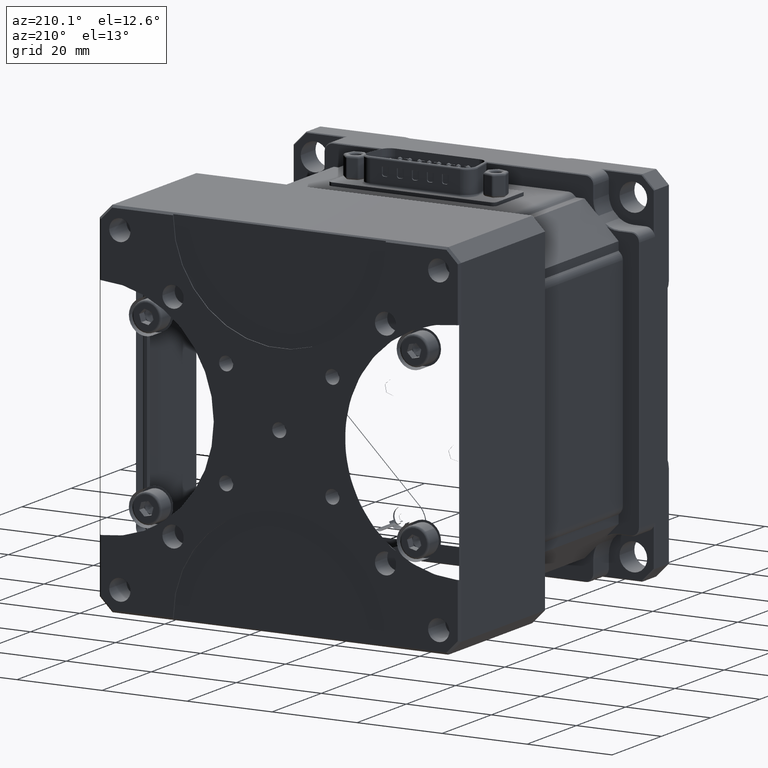
[diagram: clean part render]
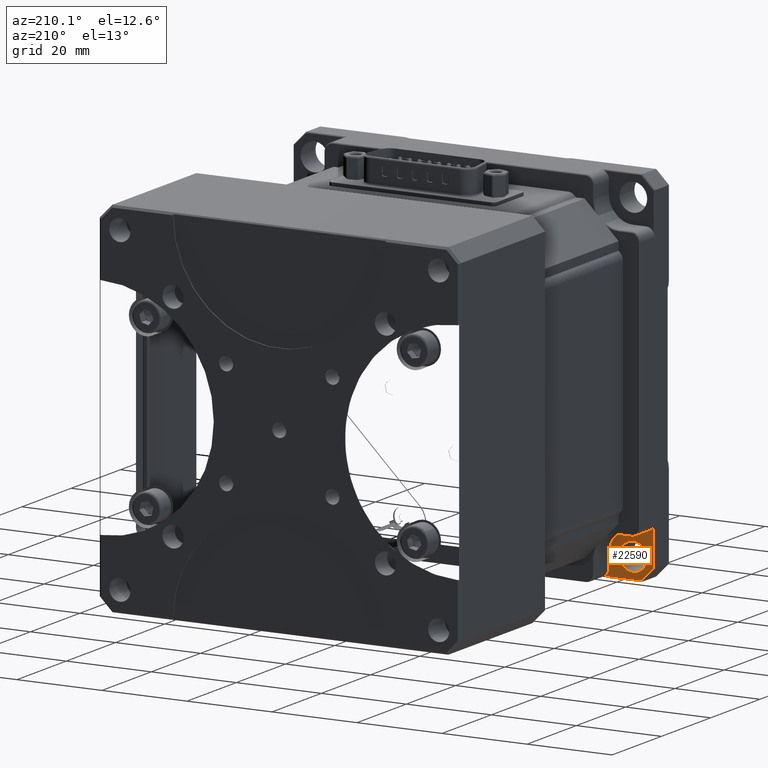
[diagram: same view with one face highlighted and labeled with its STEP entity id]
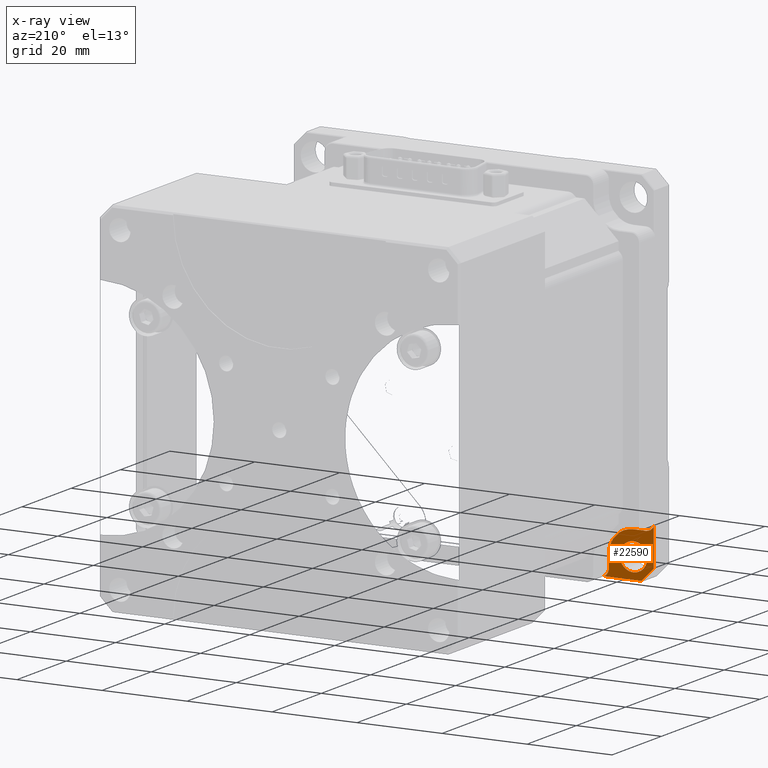
[diagram: x-ray of the same camera — body ghosted, the highlighted face saturated]
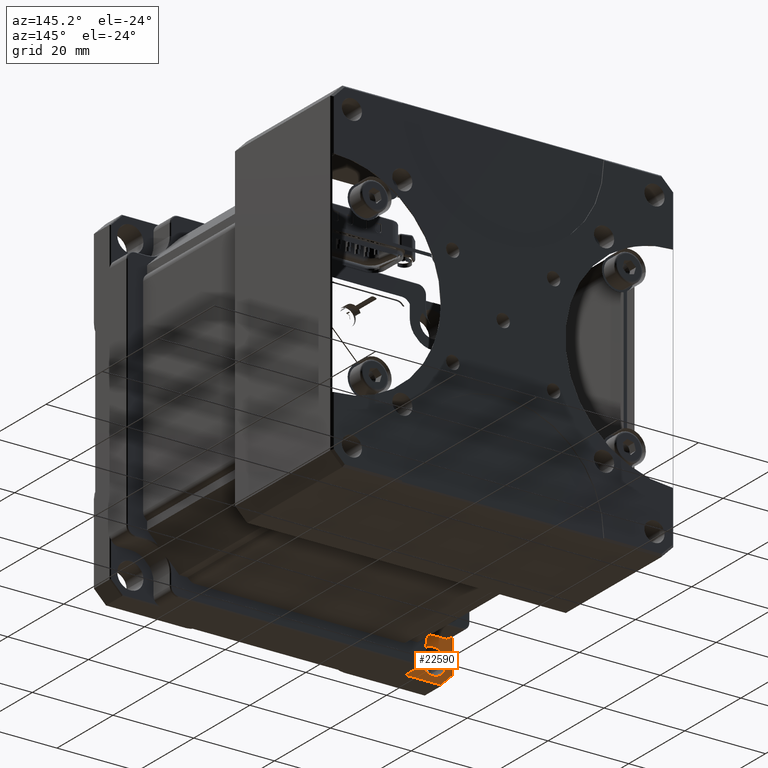
[diagram: same view with one face highlighted and labeled with its STEP entity id]
A machine part, auxiliary view. The second image highlights one B-rep face of the part: STEP entity #22590.
The next image is the same camera in x-ray: the body ghosted, the highlighted face saturated — about 0% of this face is hidden behind the body in this view.
A second angle (auxiliary view) of the same face is appended — the face is thin or edge-on in the first view.
In plain terms, the highlighted planar face has unit normal (0, -1, 0).
Its self-contained STEP definition (entity closure, byte-faithful):
#761 = DIRECTION ( 'NONE',  ( 0.000000000000000000, -1.103725197610289945E-16, -1.000000000000000000 ) ) ;
#859 = DIRECTION ( 'NONE',  ( 4.336808689942015271E-16, -1.000000000000000000, 1.103725197610289945E-16 ) ) ;
#2305 = CARTESIAN_POINT ( 'NONE',  ( 47.87449350438039630, 6.000000000000000000, -76.00000000000000000 ) ) ;
#2896 = DIRECTION ( 'NONE',  ( 1.000000000000000000, 3.016910393003143845E-16, 0.000000000000000000 ) ) ;
#2905 = VECTOR ( 'NONE', #27204, 1000.000000000000114 ) ;
#3773 = DIRECTION ( 'NONE',  ( 2.498001805406600244E-16, -1.000000000000000000, 1.103725197610289945E-16 ) ) ;
#4316 = DIRECTION ( 'NONE',  ( 1.000000000000000000, 4.336808689942013792E-16, 0.000000000000000000 ) ) ;
#6122 = VERTEX_POINT ( 'NONE', #31535 ) ;
#6346 = CARTESIAN_POINT ( 'NONE',  ( 52.67449350438040057, 6.000000000000000000, -76.00000000000000000 ) ) ;
#6957 = CARTESIAN_POINT ( 'NONE',  ( 52.67449350438040057, 6.000000000000000000, -70.25000000000000000 ) ) ;
#7994 = VECTOR ( 'NONE', #21279, 1000.000000000000000 ) ;
#8258 = EDGE_CURVE ( 'NONE', #27097, #20158, #10456, .T. ) ;
#9371 = DIRECTION ( 'NONE',  ( -2.668805347656624706E-16, 1.000000000000000000, -1.103725197610289945E-16 ) ) ;
#9893 = DIRECTION ( 'NONE',  ( 0.7071067811865480168, 9.859024442225550067E-17, -0.7071067811865470176 ) ) ;
#10456 = CIRCLE ( 'NONE', #34786, 3.250000000000002665 ) ;
#10621 = ORIENTED_EDGE ( 'NONE', *, *, #28159, .T. ) ;
#10653 = DIRECTION ( 'NONE',  ( 1.000000000000000000, 3.016910393003143845E-16, 0.000000000000000000 ) ) ;
#10677 = FACE_BOUND ( 'NONE', #26258, .T. ) ;
#11905 = EDGE_LOOP ( 'NONE', ( #36570, #38487, #30984, #10621, #30698, #15861, #30498, #23597, #13477, #23446 ) ) ;
#12437 = EDGE_CURVE ( 'NONE', #39792, #45081, #40848, .T. ) ;
#13477 = ORIENTED_EDGE ( 'NONE', *, *, #29172, .T. ) ;
#13641 = EDGE_CURVE ( 'NONE', #23684, #19531, #23766, .T. ) ;
#14053 = CARTESIAN_POINT ( 'NONE',  ( 58.42449350438040057, 6.000000000000000000, -79.00000000000000000 ) ) ;
#14069 = CARTESIAN_POINT ( 'NONE',  ( 55.92449350438040057, 6.000000000000000000, -76.00000000000000000 ) ) ;
#14130 = LINE ( 'NONE', #18034, #7994 ) ;
#14556 = DIRECTION ( 'NONE',  ( -3.016910393003145324E-16, 1.000000000000000000, -1.103725197610289945E-16 ) ) ;
#15802 = DIRECTION ( 'NONE',  ( 1.000000000000000000, 2.498001805406600244E-16, 3.148324760917950083E-16 ) ) ;
#15861 = ORIENTED_EDGE ( 'NONE', *, *, #30538, .T. ) ;
#16752 = AXIS2_PLACEMENT_3D ( 'NONE', #38887, #42347, #18084 ) ;
#16797 = LINE ( 'NONE', #30896, #2905 ) ;
#17835 = CIRCLE ( 'NONE', #30406, 2.000000000000001776 ) ;
#18034 = CARTESIAN_POINT ( 'NONE',  ( 52.67449350438040057, 6.000000000000000000, -80.79999999999999716 ) ) ;
#18084 = DIRECTION ( 'NONE',  ( 1.000000000000000000, 4.336808689942013792E-16, 0.000000000000000000 ) ) ;
#18290 = FACE_OUTER_BOUND ( 'NONE', #11905, .T. ) ;
#18692 = VERTEX_POINT ( 'NONE', #6957 ) ;
#18758 = CARTESIAN_POINT ( 'NONE',  ( 55.94562451752479859, 6.000000000000000000, -71.27113101314439803 ) ) ;
#18966 = VERTEX_POINT ( 'NONE', #27246 ) ;
#19133 = VECTOR ( 'NONE', #9893, 1000.000000000000000 ) ;
#19307 = CARTESIAN_POINT ( 'NONE',  ( 49.42449350438040057, 6.000000000000000000, -76.00000000000000000 ) ) ;
#19373 = DIRECTION ( 'NONE',  ( 3.861978163544035151E-16, 1.103725197610303873E-16, 1.000000000000000000 ) ) ;
#19531 = VERTEX_POINT ( 'NONE', #29222 ) ;
#20158 = VERTEX_POINT ( 'NONE', #14069 ) ;
#20553 = CIRCLE ( 'NONE', #23490, 3.250000000000002665 ) ;
#20655 = DIRECTION ( 'NONE',  ( 1.000000000000000000, 2.668805347656624213E-16, 0.000000000000000000 ) ) ;
#20801 = DIRECTION ( 'NONE',  ( -3.861978163544035151E-16, -1.103725197610303873E-16, -1.000000000000000000 ) ) ;
#21235 = CARTESIAN_POINT ( 'NONE',  ( 58.42449350438040057, 6.000000000000000000, -76.00000000000000000 ) ) ;
#21279 = DIRECTION ( 'NONE',  ( -1.000000000000000000, -2.498001805406600244E-16, 3.861978163544035151E-16 ) ) ;
#21305 = PLANE ( 'NONE',  #31625 ) ;
#22590 = ADVANCED_FACE ( 'NONE', ( #18290, #10677 ), #21305, .F. ) ;
#23446 = ORIENTED_EDGE ( 'NONE', *, *, #45681, .T. ) ;
#23490 = AXIS2_PLACEMENT_3D ( 'NONE', #37104, #9371, #33174 ) ;
#23597 = ORIENTED_EDGE ( 'NONE', *, *, #12437, .T. ) ;
#23684 = VERTEX_POINT ( 'NONE', #18758 ) ;
#23766 = LINE ( 'NONE', #23981, #19133 ) ;
#23812 = LINE ( 'NONE', #21235, #38929 ) ;
#23981 = CARTESIAN_POINT ( 'NONE',  ( 56.67449350438040057, 6.000000000000000000, -72.00000000000000000 ) ) ;
#24868 = AXIS2_PLACEMENT_3D ( 'NONE', #38620, #14556, #10653 ) ;
#26100 = EDGE_CURVE ( 'NONE', #44115, #30821, #17835, .T. ) ;
#26258 = EDGE_LOOP ( 'NONE', ( #44620, #34760 ) ) ;
#26887 = DIRECTION ( 'NONE',  ( -2.668805347656624706E-16, 1.000000000000000000, -1.103725197610289945E-16 ) ) ;
#27097 = VERTEX_POINT ( 'NONE', #19307 ) ;
#27204 = DIRECTION ( 'NONE',  ( -0.7071067811865505703, -9.859024442225472413E-17, 0.7071067811865444641 ) ) ;
#27246 = CARTESIAN_POINT ( 'NONE',  ( 50.75733621685500196, 6.000000000000000000, -80.79999999999999716 ) ) ;
#28159 = EDGE_CURVE ( 'NONE', #28983, #44115, #23812, .T. ) ;
#28983 = VERTEX_POINT ( 'NONE', #30378 ) ;
#29172 = EDGE_CURVE ( 'NONE', #45081, #6122, #32968, .T. ) ;
#29222 = CARTESIAN_POINT ( 'NONE',  ( 57.40336249123599544, 6.000000000000000000, -72.72886898685560197 ) ) ;
#29450 = EDGE_CURVE ( 'NONE', #18692, #23684, #32246, .T. ) ;
#30042 = EDGE_CURVE ( 'NONE', #19531, #28983, #31574, .T. ) ;
#30378 = CARTESIAN_POINT ( 'NONE',  ( 58.42449350438040057, 6.000000000000000000, -76.00000000000000000 ) ) ;
#30406 = AXIS2_PLACEMENT_3D ( 'NONE', #33152, #859, #4316 ) ;
#30498 = ORIENTED_EDGE ( 'NONE', *, *, #31195, .T. ) ;
#30538 = EDGE_CURVE ( 'NONE', #30821, #18966, #14130, .T. ) ;
#30596 = DIRECTION ( 'NONE',  ( -3.016910393003145324E-16, 1.000000000000000000, -1.103725197610289945E-16 ) ) ;
#30698 = ORIENTED_EDGE ( 'NONE', *, *, #26100, .T. ) ;
#30821 = VERTEX_POINT ( 'NONE', #30953 ) ;
#30896 = CARTESIAN_POINT ( 'NONE',  ( 47.81591486061769558, 6.000000000000000000, -77.85857864376271209 ) ) ;
#30953 = CARTESIAN_POINT ( 'NONE',  ( 59.55271371567229721, 6.000000000000000000, -80.79999999999999716 ) ) ;
#30984 = ORIENTED_EDGE ( 'NONE', *, *, #30042, .T. ) ;
#31195 = EDGE_CURVE ( 'NONE', #18966, #39792, #16797, .T. ) ;
#31535 = CARTESIAN_POINT ( 'NONE',  ( 49.67449350438040057, 6.000000000000000000, -70.25000000000000000 ) ) ;
#31539 = CARTESIAN_POINT ( 'NONE',  ( 47.87449350438039630, 6.000000000000000000, -77.91715728752541281 ) ) ;
#31574 = CIRCLE ( 'NONE', #35254, 5.749999999999998224 ) ;
#31625 = AXIS2_PLACEMENT_3D ( 'NONE', #35393, #3773, #761 ) ;
#32246 = CIRCLE ( 'NONE', #24868, 5.749999999999998224 ) ;
#32968 = CIRCLE ( 'NONE', #16752, 2.000000000000001776 ) ;
#33152 = CARTESIAN_POINT ( 'NONE',  ( 60.42449350438040057, 6.000000000000000000, -79.00000000000000000 ) ) ;
#33174 = DIRECTION ( 'NONE',  ( 1.000000000000000000, 2.668805347656624213E-16, 0.000000000000000000 ) ) ;
#34737 = CARTESIAN_POINT ( 'NONE',  ( 52.67449350438040057, 6.000000000000000000, -76.00000000000000000 ) ) ;
#34760 = ORIENTED_EDGE ( 'NONE', *, *, #39648, .F. ) ;
#34786 = AXIS2_PLACEMENT_3D ( 'NONE', #34737, #26887, #20655 ) ;
#35254 = AXIS2_PLACEMENT_3D ( 'NONE', #6346, #30596, #2896 ) ;
#35393 = CARTESIAN_POINT ( 'NONE',  ( 52.67449350438040057, 6.000000000000000000, -76.00000000000000000 ) ) ;
#36378 = LINE ( 'NONE', #43763, #36748 ) ;
#36570 = ORIENTED_EDGE ( 'NONE', *, *, #29450, .T. ) ;
#36748 = VECTOR ( 'NONE', #15802, 1000.000000000000000 ) ;
#37104 = CARTESIAN_POINT ( 'NONE',  ( 52.67449350438040057, 6.000000000000000000, -76.00000000000000000 ) ) ;
#38487 = ORIENTED_EDGE ( 'NONE', *, *, #13641, .T. ) ;
#38620 = CARTESIAN_POINT ( 'NONE',  ( 52.67449350438040057, 6.000000000000000000, -76.00000000000000000 ) ) ;
#38887 = CARTESIAN_POINT ( 'NONE',  ( 49.67449350438040057, 6.000000000000000000, -68.25000000000000000 ) ) ;
#38929 = VECTOR ( 'NONE', #20801, 1000.000000000000000 ) ;
#39648 = EDGE_CURVE ( 'NONE', #20158, #27097, #20553, .T. ) ;
#39792 = VERTEX_POINT ( 'NONE', #31539 ) ;
#40848 = LINE ( 'NONE', #2305, #44682 ) ;
#42347 = DIRECTION ( 'NONE',  ( 4.336808689942015271E-16, -1.000000000000000000, 1.103725197610289945E-16 ) ) ;
#43404 = CARTESIAN_POINT ( 'NONE',  ( 47.87449350438039630, 6.000000000000000000, -69.12177978870809625 ) ) ;
#43763 = CARTESIAN_POINT ( 'NONE',  ( 52.67449350438040057, 6.000000000000000000, -70.25000000000000000 ) ) ;
#44115 = VERTEX_POINT ( 'NONE', #14053 ) ;
#44620 = ORIENTED_EDGE ( 'NONE', *, *, #8258, .F. ) ;
#44682 = VECTOR ( 'NONE', #19373, 1000.000000000000000 ) ;
#45081 = VERTEX_POINT ( 'NONE', #43404 ) ;
#45681 = EDGE_CURVE ( 'NONE', #6122, #18692, #36378, .T. ) ;